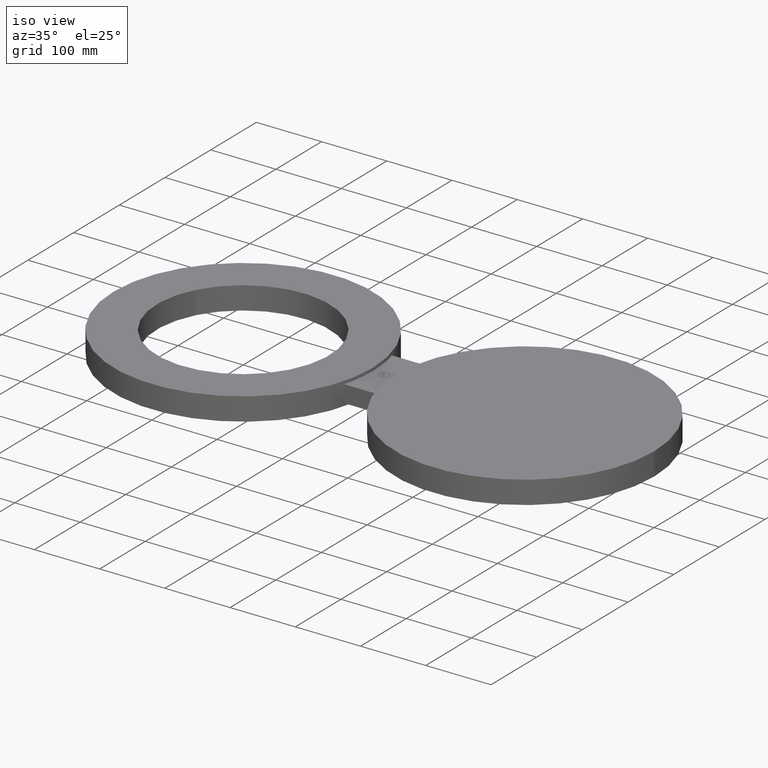
[diagram: clean part render]
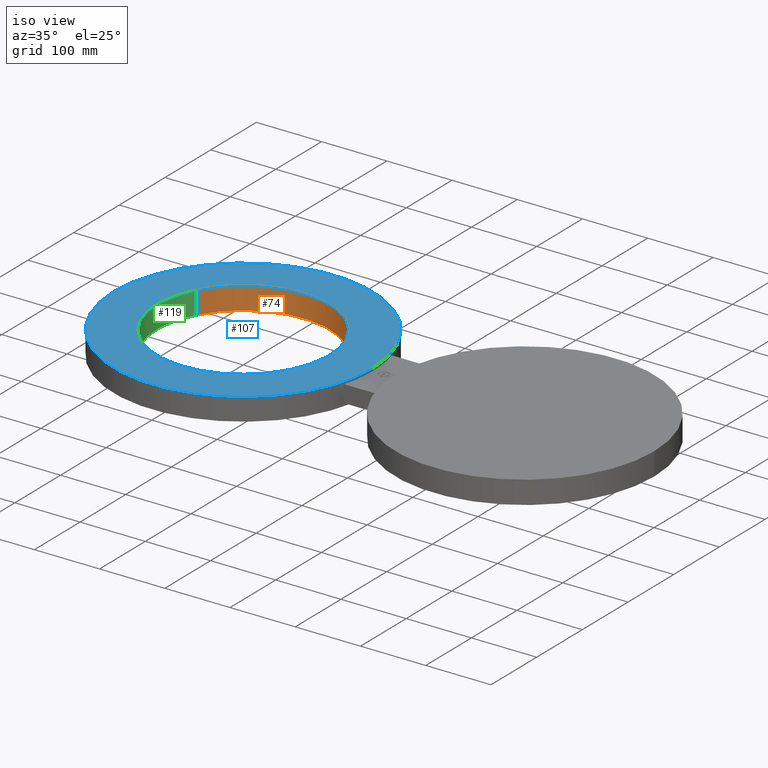
[diagram: same view with three faces highlighted in distinct colors, each labeled with its STEP entity id]
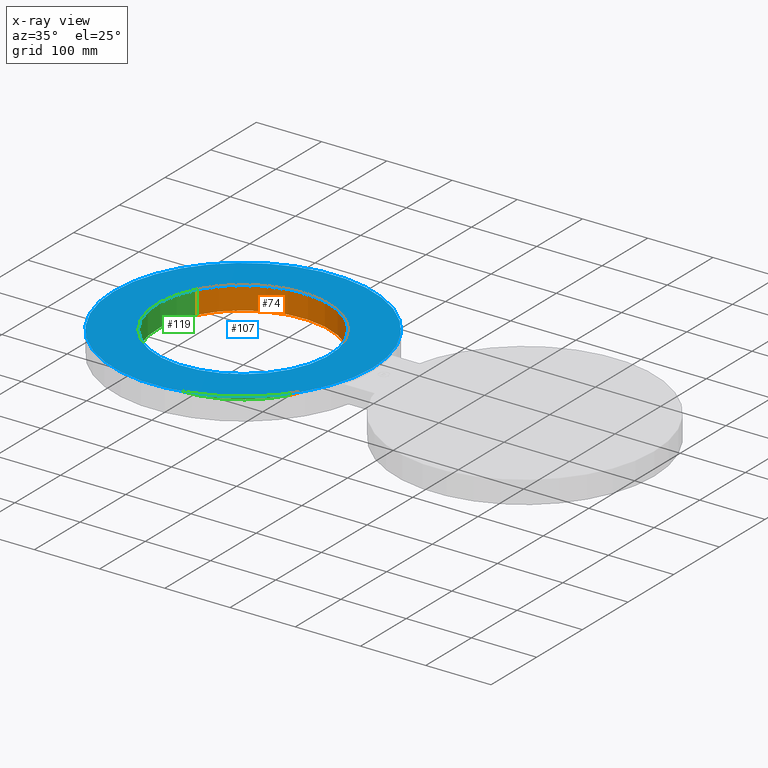
[diagram: x-ray of the same camera — body ghosted, the three highlighted faces saturated]
A machine part, iso view with three faces highlighted in distinct colors.
The next image is the same camera in x-ray (body ghosted, the three faces saturated) — at least one of them is partly hidden behind the body in this view.
Their STEP definitions:

[orange] entity #74 — the highlighted cylindrical surface (partial cylindrical patch) has radius 132.334 mm, axis along (0, -0, -1).
#38=AXIS2_PLACEMENT_3D('Cylinder Axis2P3D',#35,#36,#37) ;
#51=AXIS2_PLACEMENT_3D('Circle Axis2P3D',#49,#50,$) ;
#65=AXIS2_PLACEMENT_3D('Circle Axis2P3D',#63,#64,$) ;
#35=CARTESIAN_POINT('Axis2P3D Location',(8.52336574023E-017,-6.99353086378E-017,0.686062992129)) ;
#40=CARTESIAN_POINT('Line Origine',(-4.57220514747,2.49780705614,0.)) ;
#44=CARTESIAN_POINT('Vertex',(-4.57220514747,2.49780705614,-0.690000000003)) ;
#46=CARTESIAN_POINT('Vertex',(-4.57220514747,2.49780705614,0.690000000003)) ;
#49=CARTESIAN_POINT('Axis2P3D Location',(8.52336574023E-017,-6.99353086378E-017,-0.690000000003)) ;
#53=CARTESIAN_POINT('Vertex',(4.57220514747,-2.49780705614,-0.690000000003)) ;
#56=CARTESIAN_POINT('Line Origine',(4.57220514747,-2.49780705614,0.)) ;
#60=CARTESIAN_POINT('Vertex',(4.57220514747,-2.49780705614,0.690000000003)) ;
#63=CARTESIAN_POINT('Axis2P3D Location',(8.52336574023E-017,-6.99353086378E-017,0.690000000003)) ;
#36=DIRECTION('Axis2P3D Direction',(0.,-0.,-0.0393700787402)) ;
#37=DIRECTION('Axis2P3D XDirection',(0.0345504945626,-0.0188750212049,0.)) ;
#41=DIRECTION('Vector Direction',(0.,0.,-0.0393700787402)) ;
#50=DIRECTION('Axis2P3D Direction',(0.,-0.,-0.0393700787402)) ;
#57=DIRECTION('Vector Direction',(0.,0.,-0.0393700787402)) ;
#64=DIRECTION('Axis2P3D Direction',(0.,-0.,-0.0393700787402)) ;
#42=VECTOR('Line Direction',#41,0.0393700787402) ;
#58=VECTOR('Line Direction',#57,0.0393700787402) ;
#69=ORIENTED_EDGE('',*,*,#48,.F.) ;
#70=ORIENTED_EDGE('',*,*,#55,.F.) ;
#71=ORIENTED_EDGE('',*,*,#62,.T.) ;
#72=ORIENTED_EDGE('',*,*,#67,.T.) ;
#74=ADVANCED_FACE('PartBody',(#73),#39,.F.) ;
#52=CIRCLE('generated circle',#51,5.21000000002) ;
#66=CIRCLE('generated circle',#65,5.21000000002) ;
#39=CYLINDRICAL_SURFACE('generated cylinder',#38,5.21000000002) ;
#48=EDGE_CURVE('',#45,#47,#43,.F.) ;
#55=EDGE_CURVE('',#54,#45,#52,.F.) ;
#62=EDGE_CURVE('',#54,#61,#59,.F.) ;
#67=EDGE_CURVE('',#61,#47,#66,.F.) ;
#68=EDGE_LOOP('',(#69,#70,#71,#72)) ;
#73=FACE_OUTER_BOUND('',#68,.T.) ;
#43=LINE('Line',#40,#42) ;
#59=LINE('Line',#56,#58) ;
#45=VERTEX_POINT('',#44) ;
#47=VERTEX_POINT('',#46) ;
#54=VERTEX_POINT('',#53) ;
#61=VERTEX_POINT('',#60) ;

[blue] entity #107 — the highlighted planar face has unit normal (0, 0, 1).
#65=AXIS2_PLACEMENT_3D('Circle Axis2P3D',#63,#64,$) ;
#78=AXIS2_PLACEMENT_3D('Plane Axis2P3D',#75,#76,#77) ;
#82=AXIS2_PLACEMENT_3D('Circle Axis2P3D',#80,#81,$) ;
#91=AXIS2_PLACEMENT_3D('Circle Axis2P3D',#89,#90,$) ;
#100=AXIS2_PLACEMENT_3D('Circle Axis2P3D',#98,#99,$) ;
#46=CARTESIAN_POINT('Vertex',(-4.57220514747,2.49780705614,0.690000000003)) ;
#60=CARTESIAN_POINT('Vertex',(4.57220514747,-2.49780705614,0.690000000003)) ;
#63=CARTESIAN_POINT('Axis2P3D Location',(8.52336574023E-017,-6.99353086378E-017,0.690000000003)) ;
#75=CARTESIAN_POINT('Axis2P3D Location',(0.,0.,0.690000000003)) ;
#80=CARTESIAN_POINT('Axis2P3D Location',(0.,0.,0.690000000003)) ;
#84=CARTESIAN_POINT('Vertex',(7.81000000003,0.,0.690000000003)) ;
#86=CARTESIAN_POINT('Vertex',(-7.81000000003,9.56449150138E-016,0.690000000003)) ;
#89=CARTESIAN_POINT('Axis2P3D Location',(0.,0.,0.690000000003)) ;
#98=CARTESIAN_POINT('Axis2P3D Location',(5.59482469102E-016,-1.1189649382E-015,0.690000000003)) ;
#64=DIRECTION('Axis2P3D Direction',(0.,-0.,-0.0393700787402)) ;
#76=DIRECTION('Axis2P3D Direction',(0.,0.,0.0393700787402)) ;
#77=DIRECTION('Axis2P3D XDirection',(0.0393700787402,0.,0.)) ;
#81=DIRECTION('Axis2P3D Direction',(0.,0.,0.0393700787402)) ;
#90=DIRECTION('Axis2P3D Direction',(0.,0.,0.0393700787402)) ;
#99=DIRECTION('Axis2P3D Direction',(0.,0.,0.0393700787402)) ;
#95=ORIENTED_EDGE('',*,*,#88,.T.) ;
#96=ORIENTED_EDGE('',*,*,#93,.T.) ;
#104=ORIENTED_EDGE('',*,*,#102,.F.) ;
#105=ORIENTED_EDGE('',*,*,#67,.F.) ;
#106=FACE_BOUND('',#103,.T.) ;
#107=ADVANCED_FACE('PartBody',(#97,#106),#79,.T.) ;
#66=CIRCLE('generated circle',#65,5.21000000002) ;
#83=CIRCLE('generated circle',#82,7.81000000003) ;
#92=CIRCLE('generated circle',#91,7.81000000003) ;
#101=CIRCLE('generated circle',#100,5.21000000002) ;
#67=EDGE_CURVE('',#61,#47,#66,.F.) ;
#88=EDGE_CURVE('',#85,#87,#83,.T.) ;
#93=EDGE_CURVE('',#87,#85,#92,.T.) ;
#102=EDGE_CURVE('',#47,#61,#101,.T.) ;
#94=EDGE_LOOP('',(#95,#96)) ;
#103=EDGE_LOOP('',(#104,#105)) ;
#97=FACE_OUTER_BOUND('',#94,.T.) ;
#79=PLANE('',#78) ;
#47=VERTEX_POINT('',#46) ;
#61=VERTEX_POINT('',#60) ;
#85=VERTEX_POINT('',#84) ;
#87=VERTEX_POINT('',#86) ;

[green] entity #119 — the highlighted cylindrical surface (partial cylindrical patch) has radius 132.334 mm, axis along (0, -0, -1).
#38=AXIS2_PLACEMENT_3D('Cylinder Axis2P3D',#35,#36,#37) ;
#100=AXIS2_PLACEMENT_3D('Circle Axis2P3D',#98,#99,$) ;
#110=AXIS2_PLACEMENT_3D('Circle Axis2P3D',#108,#109,$) ;
#35=CARTESIAN_POINT('Axis2P3D Location',(8.52336574023E-017,-6.99353086378E-017,0.686062992129)) ;
#40=CARTESIAN_POINT('Line Origine',(-4.57220514747,2.49780705614,0.)) ;
#44=CARTESIAN_POINT('Vertex',(-4.57220514747,2.49780705614,-0.690000000003)) ;
#46=CARTESIAN_POINT('Vertex',(-4.57220514747,2.49780705614,0.690000000003)) ;
#53=CARTESIAN_POINT('Vertex',(4.57220514747,-2.49780705614,-0.690000000003)) ;
#56=CARTESIAN_POINT('Line Origine',(4.57220514747,-2.49780705614,0.)) ;
#60=CARTESIAN_POINT('Vertex',(4.57220514747,-2.49780705614,0.690000000003)) ;
#98=CARTESIAN_POINT('Axis2P3D Location',(5.59482469102E-016,-1.1189649382E-015,0.690000000003)) ;
#108=CARTESIAN_POINT('Axis2P3D Location',(8.52336574023E-017,-6.99353086378E-017,-0.690000000003)) ;
#36=DIRECTION('Axis2P3D Direction',(0.,-0.,-0.0393700787402)) ;
#37=DIRECTION('Axis2P3D XDirection',(0.0345504945626,-0.0188750212049,0.)) ;
#41=DIRECTION('Vector Direction',(0.,0.,-0.0393700787402)) ;
#57=DIRECTION('Vector Direction',(0.,0.,-0.0393700787402)) ;
#99=DIRECTION('Axis2P3D Direction',(0.,0.,0.0393700787402)) ;
#109=DIRECTION('Axis2P3D Direction',(0.,-0.,-0.0393700787402)) ;
#42=VECTOR('Line Direction',#41,0.0393700787402) ;
#58=VECTOR('Line Direction',#57,0.0393700787402) ;
#114=ORIENTED_EDGE('',*,*,#62,.F.) ;
#115=ORIENTED_EDGE('',*,*,#112,.F.) ;
#116=ORIENTED_EDGE('',*,*,#48,.T.) ;
#117=ORIENTED_EDGE('',*,*,#102,.T.) ;
#119=ADVANCED_FACE('PartBody',(#118),#39,.F.) ;
#101=CIRCLE('generated circle',#100,5.21000000002) ;
#111=CIRCLE('generated circle',#110,5.21000000002) ;
#39=CYLINDRICAL_SURFACE('generated cylinder',#38,5.21000000002) ;
#48=EDGE_CURVE('',#45,#47,#43,.F.) ;
#62=EDGE_CURVE('',#54,#61,#59,.F.) ;
#102=EDGE_CURVE('',#47,#61,#101,.T.) ;
#112=EDGE_CURVE('',#45,#54,#111,.F.) ;
#113=EDGE_LOOP('',(#114,#115,#116,#117)) ;
#118=FACE_OUTER_BOUND('',#113,.T.) ;
#43=LINE('Line',#40,#42) ;
#59=LINE('Line',#56,#58) ;
#45=VERTEX_POINT('',#44) ;
#47=VERTEX_POINT('',#46) ;
#54=VERTEX_POINT('',#53) ;
#61=VERTEX_POINT('',#60) ;